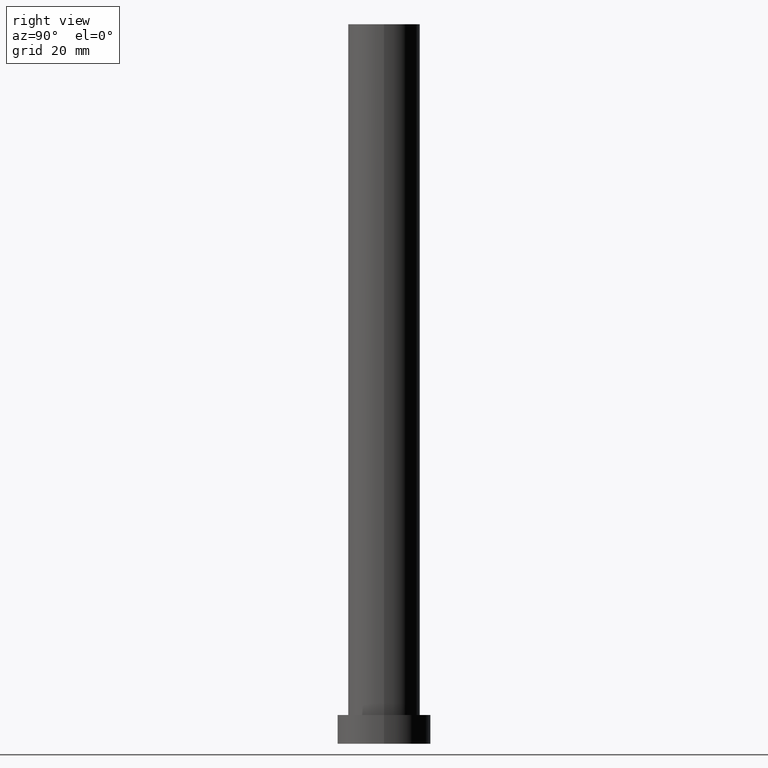
[diagram: clean part render]
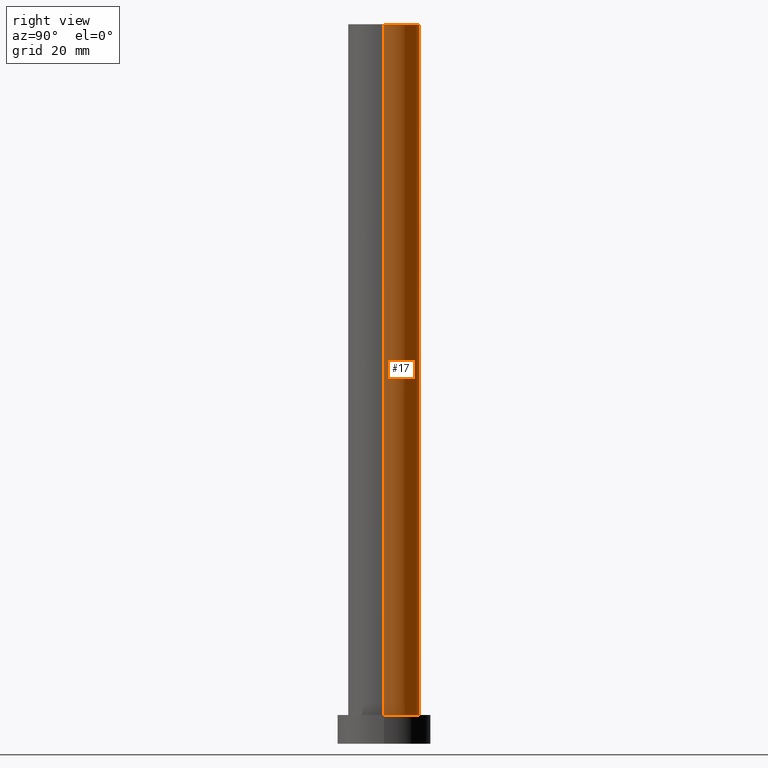
[diagram: same view with one face highlighted and labeled with its STEP entity id]
A machine part, right view. The second image highlights one B-rep face of the part: STEP entity #17.
In plain terms, the highlighted cylindrical surface (edge-blend (fillet) strip) has radius 10 mm, axis along (-0, -0, -1).
Its self-contained STEP definition (entity closure, byte-faithful):
#1 = CARTESIAN_POINT ( 'NONE',  ( 10.00000000000000000, 1.224646799147353256E-15, 8.000000000000000000 ) ) ;
#4 = DIRECTION ( 'NONE',  ( 1.000000000000000000, 0.000000000000000000, 0.000000000000000000 ) ) ;
#14 = CYLINDRICAL_SURFACE ( 'NONE', #133, 10.00000000000000000 ) ;
#15 = CARTESIAN_POINT ( 'NONE',  ( 0.000000000000000000, 0.000000000000000000, 200.0000000000000000 ) ) ;
#17 = ADVANCED_FACE ( 'NONE', ( #166 ), #14, .T. ) ;
#31 = VERTEX_POINT ( 'NONE', #169 ) ;
#34 = LINE ( 'NONE', #170, #154 ) ;
#48 = DIRECTION ( 'NONE',  ( -0.000000000000000000, -0.000000000000000000, -1.000000000000000000 ) ) ;
#50 = EDGE_LOOP ( 'NONE', ( #250, #230, #68, #145 ) ) ;
#66 = VECTOR ( 'NONE', #194, 1000.000000000000000 ) ;
#68 = ORIENTED_EDGE ( 'NONE', *, *, #203, .T. ) ;
#77 = LINE ( 'NONE', #109, #66 ) ;
#80 = AXIS2_PLACEMENT_3D ( 'NONE', #114, #96, #4 ) ;
#84 = VERTEX_POINT ( 'NONE', #132 ) ;
#86 = VERTEX_POINT ( 'NONE', #1 ) ;
#92 = DIRECTION ( 'NONE',  ( -0.000000000000000000, -0.000000000000000000, -1.000000000000000000 ) ) ;
#94 = CARTESIAN_POINT ( 'NONE',  ( -10.00000000000000000, 0.000000000000000000, 8.000000000000000000 ) ) ;
#96 = DIRECTION ( 'NONE',  ( 0.000000000000000000, 0.000000000000000000, 1.000000000000000000 ) ) ;
#106 = AXIS2_PLACEMENT_3D ( 'NONE', #244, #182, #245 ) ;
#109 = CARTESIAN_POINT ( 'NONE',  ( -10.00000000000000000, 0.000000000000000000, 200.0000000000000000 ) ) ;
#113 = EDGE_CURVE ( 'NONE', #31, #86, #34, .T. ) ;
#114 = CARTESIAN_POINT ( 'NONE',  ( 0.000000000000000000, 0.000000000000000000, 8.000000000000000000 ) ) ;
#123 = DIRECTION ( 'NONE',  ( -1.000000000000000000, 0.000000000000000000, 0.000000000000000000 ) ) ;
#132 = CARTESIAN_POINT ( 'NONE',  ( -10.00000000000000000, 0.000000000000000000, 200.0000000000000000 ) ) ;
#133 = AXIS2_PLACEMENT_3D ( 'NONE', #15, #48, #123 ) ;
#145 = ORIENTED_EDGE ( 'NONE', *, *, #212, .F. ) ;
#154 = VECTOR ( 'NONE', #92, 1000.000000000000000 ) ;
#164 = VERTEX_POINT ( 'NONE', #94 ) ;
#166 = FACE_OUTER_BOUND ( 'NONE', #50, .T. ) ;
#169 = CARTESIAN_POINT ( 'NONE',  ( 10.00000000000000000, 1.224646799147353256E-15, 200.0000000000000000 ) ) ;
#170 = CARTESIAN_POINT ( 'NONE',  ( 10.00000000000000000, 1.224646799147353256E-15, 200.0000000000000000 ) ) ;
#181 = CIRCLE ( 'NONE', #80, 10.00000000000000000 ) ;
#182 = DIRECTION ( 'NONE',  ( 0.000000000000000000, 0.000000000000000000, 1.000000000000000000 ) ) ;
#194 = DIRECTION ( 'NONE',  ( -0.000000000000000000, -0.000000000000000000, -1.000000000000000000 ) ) ;
#197 = CIRCLE ( 'NONE', #106, 10.00000000000000000 ) ;
#203 = EDGE_CURVE ( 'NONE', #86, #164, #181, .T. ) ;
#212 = EDGE_CURVE ( 'NONE', #84, #164, #77, .T. ) ;
#230 = ORIENTED_EDGE ( 'NONE', *, *, #113, .T. ) ;
#244 = CARTESIAN_POINT ( 'NONE',  ( 0.000000000000000000, 0.000000000000000000, 200.0000000000000000 ) ) ;
#245 = DIRECTION ( 'NONE',  ( 1.000000000000000000, 0.000000000000000000, 0.000000000000000000 ) ) ;
#250 = ORIENTED_EDGE ( 'NONE', *, *, #253, .F. ) ;
#253 = EDGE_CURVE ( 'NONE', #31, #84, #197, .T. ) ;